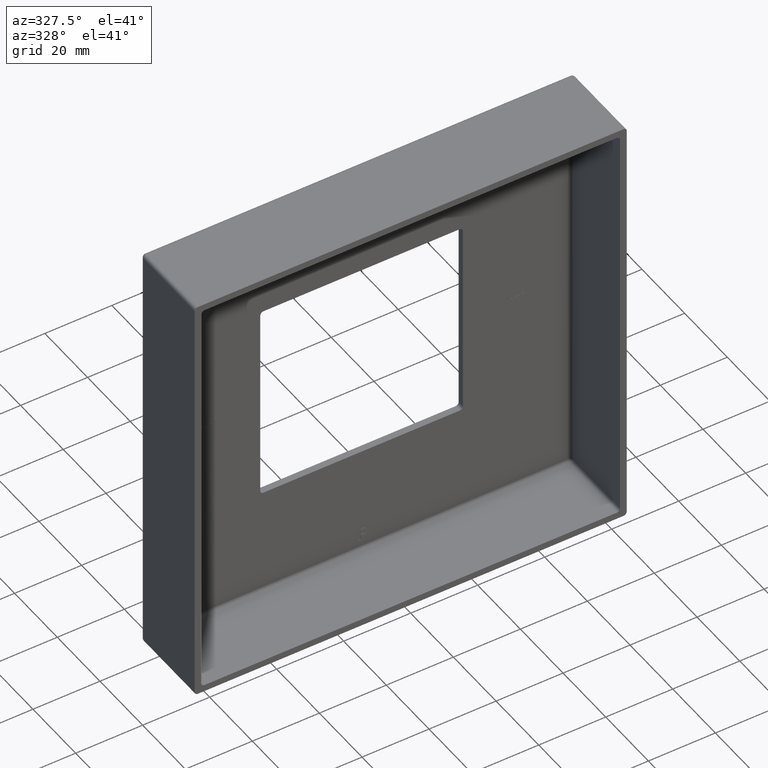
[diagram: clean part render]
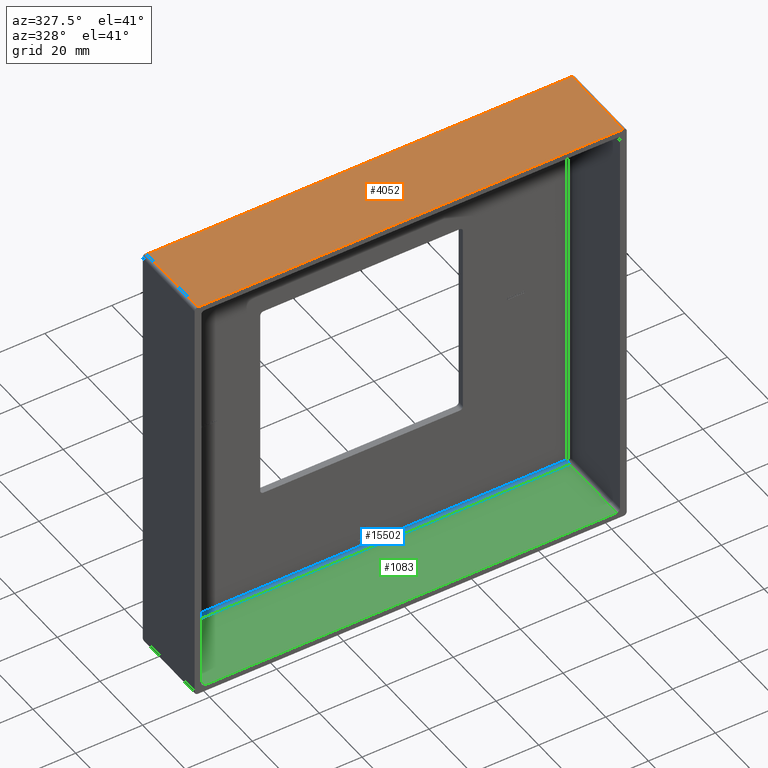
[diagram: same view with three faces highlighted in distinct colors, each labeled with its STEP entity id]
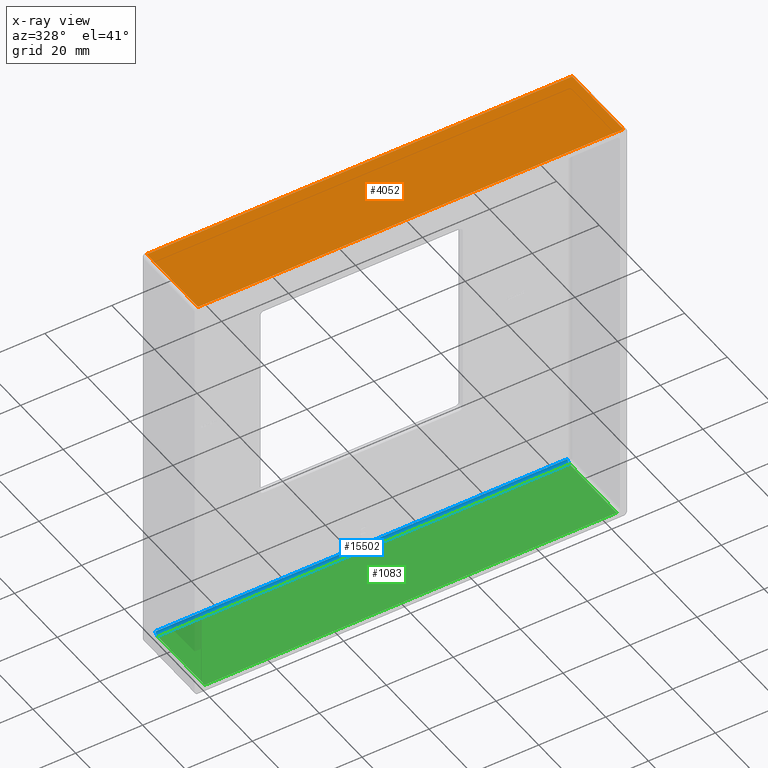
[diagram: x-ray of the same camera — body ghosted, the three highlighted faces saturated]
A machine part, auxiliary view with three faces highlighted in distinct colors.
The next image is the same camera in x-ray (body ghosted, the three faces saturated) — at least one of them is partly hidden behind the body in this view.
Their STEP definitions:

[orange] entity #4052 — the highlighted planar face has unit normal (0, 0, -1).
#1559 = ORIENTED_EDGE ( 'NONE', *, *, #5195, .T. ) ;
#2349 = EDGE_CURVE ( 'NONE', #10896, #13047, #10012, .T. ) ;
#3547 = ORIENTED_EDGE ( 'NONE', *, *, #4170, .T. ) ;
#3828 = LINE ( 'NONE', #5657, #14207 ) ;
#4052 = ADVANCED_FACE ( 'NONE', ( #5770 ), #13344, .F. ) ;
#4170 = EDGE_CURVE ( 'NONE', #15280, #10896, #3828, .T. ) ;
#4323 = CARTESIAN_POINT ( 'NONE',  ( -64.49999999999997158, 0.000000000000000000, 64.50000000000000000 ) ) ;
#4398 = CARTESIAN_POINT ( 'NONE',  ( 63.50000000000000000, 24.00000000000000000, 64.50000000000000000 ) ) ;
#4521 = ORIENTED_EDGE ( 'NONE', *, *, #12317, .T. ) ;
#5195 = EDGE_CURVE ( 'NONE', #13047, #17208, #17313, .T. ) ;
#5288 = DIRECTION ( 'NONE',  ( 0.000000000000000000, 0.000000000000000000, -1.000000000000000000 ) ) ;
#5657 = CARTESIAN_POINT ( 'NONE',  ( -63.49999999999997158, 25.00000000000000000, 64.50000000000000000 ) ) ;
#5770 = FACE_OUTER_BOUND ( 'NONE', #12388, .T. ) ;
#6868 = CARTESIAN_POINT ( 'NONE',  ( -63.49999999999997158, 24.00000000000000000, 64.50000000000000000 ) ) ;
#8327 = DIRECTION ( 'NONE',  ( 0.000000000000000000, -1.000000000000000000, 0.000000000000000000 ) ) ;
#9005 = CARTESIAN_POINT ( 'NONE',  ( -64.49999999999997158, 24.00000000000000000, 64.50000000000000000 ) ) ;
#9862 = ORIENTED_EDGE ( 'NONE', *, *, #2349, .T. ) ;
#10012 = LINE ( 'NONE', #4323, #10845 ) ;
#10156 = VECTOR ( 'NONE', #13500, 1000.000000000000000 ) ;
#10845 = VECTOR ( 'NONE', #16410, 1000.000000000000000 ) ;
#10896 = VERTEX_POINT ( 'NONE', #14932 ) ;
#11320 = AXIS2_PLACEMENT_3D ( 'NONE', #11914, #5288, #16079 ) ;
#11654 = LINE ( 'NONE', #9005, #16285 ) ;
#11914 = CARTESIAN_POINT ( 'NONE',  ( -64.49999999999997158, 25.00000000000000000, 64.50000000000000000 ) ) ;
#12317 = EDGE_CURVE ( 'NONE', #17208, #15280, #11654, .T. ) ;
#12388 = EDGE_LOOP ( 'NONE', ( #4521, #3547, #9862, #1559 ) ) ;
#13047 = VERTEX_POINT ( 'NONE', #17518 ) ;
#13344 = PLANE ( 'NONE',  #11320 ) ;
#13500 = DIRECTION ( 'NONE',  ( -0.000000000000000000, 1.000000000000000000, -0.000000000000000000 ) ) ;
#14207 = VECTOR ( 'NONE', #8327, 1000.000000000000000 ) ;
#14932 = CARTESIAN_POINT ( 'NONE',  ( -63.49999999999997158, 0.000000000000000000, 64.50000000000000000 ) ) ;
#15280 = VERTEX_POINT ( 'NONE', #6868 ) ;
#16079 = DIRECTION ( 'NONE',  ( -1.000000000000000000, 0.000000000000000000, -0.000000000000000000 ) ) ;
#16285 = VECTOR ( 'NONE', #16878, 1000.000000000000000 ) ;
#16410 = DIRECTION ( 'NONE',  ( 1.000000000000000000, 0.000000000000000000, 0.000000000000000000 ) ) ;
#16878 = DIRECTION ( 'NONE',  ( -1.000000000000000000, -0.000000000000000000, -0.000000000000000000 ) ) ;
#17208 = VERTEX_POINT ( 'NONE', #4398 ) ;
#17313 = LINE ( 'NONE', #17509, #10156 ) ;
#17509 = CARTESIAN_POINT ( 'NONE',  ( 63.50000000000000000, 25.00000000000000000, 64.50000000000000000 ) ) ;
#17518 = CARTESIAN_POINT ( 'NONE',  ( 63.50000000000000000, 0.000000000000000000, 64.50000000000000000 ) ) ;

[blue] entity #15502 — the highlighted cylindrical surface (edge-blend (fillet) strip) has radius 1 mm, axis along (-1, 0, 0).
#79 = CARTESIAN_POINT ( 'NONE',  ( -61.50000000000000000, 22.00000000000000000, -61.49999999999997158 ) ) ;
#164 = CARTESIAN_POINT ( 'NONE',  ( 61.50000000000000000, 23.00000000000000000, -61.49999999999997158 ) ) ;
#845 = LINE ( 'NONE', #1982, #11870 ) ;
#1260 = CYLINDRICAL_SURFACE ( 'NONE', #11382, 1.000000000000000888 ) ;
#1423 = CARTESIAN_POINT ( 'NONE',  ( 61.50000000000000000, 22.00000000000000000, -61.49999999999997158 ) ) ;
#1730 = AXIS2_PLACEMENT_3D ( 'NONE', #79, #5361, #9530 ) ;
#1924 = DIRECTION ( 'NONE',  ( 1.000000000000000000, -0.000000000000000000, -0.000000000000000000 ) ) ;
#1982 = CARTESIAN_POINT ( 'NONE',  ( 0.000000000000000000, 23.00000000000000000, -61.49999999999997158 ) ) ;
#2317 = VERTEX_POINT ( 'NONE', #164 ) ;
#2516 = VECTOR ( 'NONE', #16007, 1000.000000000000000 ) ;
#3649 = EDGE_CURVE ( 'NONE', #4894, #14987, #6181, .T. ) ;
#4531 = CARTESIAN_POINT ( 'NONE',  ( 61.50000000000000000, 22.00000000000000000, -62.49999999999997158 ) ) ;
#4894 = VERTEX_POINT ( 'NONE', #12261 ) ;
#5130 = CARTESIAN_POINT ( 'NONE',  ( -64.50000000000000000, 22.00000000000000000, -61.49999999999997158 ) ) ;
#5328 = EDGE_LOOP ( 'NONE', ( #6084, #10262, #7440, #15718 ) ) ;
#5361 = DIRECTION ( 'NONE',  ( -1.000000000000000000, 0.000000000000000000, -0.000000000000000000 ) ) ;
#6084 = ORIENTED_EDGE ( 'NONE', *, *, #17157, .T. ) ;
#6181 = CIRCLE ( 'NONE', #1730, 1.000000000000000888 ) ;
#6826 = VERTEX_POINT ( 'NONE', #4531 ) ;
#7064 = AXIS2_PLACEMENT_3D ( 'NONE', #1423, #8379, #11014 ) ;
#7440 = ORIENTED_EDGE ( 'NONE', *, *, #3649, .T. ) ;
#7569 = CIRCLE ( 'NONE', #7064, 1.000000000000000888 ) ;
#8379 = DIRECTION ( 'NONE',  ( 1.000000000000000000, -0.000000000000000000, -0.000000000000000000 ) ) ;
#9530 = DIRECTION ( 'NONE',  ( 0.000000000000000000, 0.000000000000000000, -1.000000000000000000 ) ) ;
#10262 = ORIENTED_EDGE ( 'NONE', *, *, #12696, .F. ) ;
#10701 = CARTESIAN_POINT ( 'NONE',  ( -64.50000000000000000, 22.00000000000000000, -62.49999999999997158 ) ) ;
#11014 = DIRECTION ( 'NONE',  ( 0.000000000000000000, 0.000000000000000000, 1.000000000000000000 ) ) ;
#11036 = CARTESIAN_POINT ( 'NONE',  ( -61.50000000000000000, 22.00000000000000000, -62.49999999999997158 ) ) ;
#11382 = AXIS2_PLACEMENT_3D ( 'NONE', #5130, #13469, #13233 ) ;
#11870 = VECTOR ( 'NONE', #1924, 1000.000000000000000 ) ;
#12261 = CARTESIAN_POINT ( 'NONE',  ( -61.50000000000000000, 23.00000000000000000, -61.49999999999997158 ) ) ;
#12696 = EDGE_CURVE ( 'NONE', #4894, #2317, #845, .T. ) ;
#13233 = DIRECTION ( 'NONE',  ( 0.000000000000000000, 0.000000000000000000, 1.000000000000000000 ) ) ;
#13469 = DIRECTION ( 'NONE',  ( -1.000000000000000000, 0.000000000000000000, 0.000000000000000000 ) ) ;
#14987 = VERTEX_POINT ( 'NONE', #11036 ) ;
#15502 = ADVANCED_FACE ( 'NONE', ( #15815 ), #1260, .F. ) ;
#15718 = ORIENTED_EDGE ( 'NONE', *, *, #16368, .F. ) ;
#15815 = FACE_OUTER_BOUND ( 'NONE', #5328, .T. ) ;
#16007 = DIRECTION ( 'NONE',  ( -1.000000000000000000, 0.000000000000000000, 0.000000000000000000 ) ) ;
#16043 = LINE ( 'NONE', #10701, #2516 ) ;
#16368 = EDGE_CURVE ( 'NONE', #6826, #14987, #16043, .T. ) ;
#17157 = EDGE_CURVE ( 'NONE', #6826, #2317, #7569, .T. ) ;

[green] entity #1083 — the highlighted planar face has unit normal (0, 0, 1).
#547 = EDGE_LOOP ( 'NONE', ( #1226, #8459, #7123, #10812 ) ) ;
#1083 = ADVANCED_FACE ( 'NONE', ( #17173 ), #12266, .T. ) ;
#1226 = ORIENTED_EDGE ( 'NONE', *, *, #16368, .T. ) ;
#1921 = EDGE_CURVE ( 'NONE', #8905, #14925, #7055, .T. ) ;
#1980 = VECTOR ( 'NONE', #9566, 1000.000000000000000 ) ;
#2516 = VECTOR ( 'NONE', #16007, 1000.000000000000000 ) ;
#4207 = DIRECTION ( 'NONE',  ( 1.000000000000000000, 0.000000000000000000, -0.000000000000000000 ) ) ;
#4531 = CARTESIAN_POINT ( 'NONE',  ( 61.50000000000000000, 22.00000000000000000, -62.49999999999997158 ) ) ;
#4849 = DIRECTION ( 'NONE',  ( -1.000000000000000000, 0.000000000000000000, 0.000000000000000000 ) ) ;
#5877 = CARTESIAN_POINT ( 'NONE',  ( -64.50000000000000000, 0.000000000000000000, -62.49999999999997158 ) ) ;
#6175 = CARTESIAN_POINT ( 'NONE',  ( 61.50000000000000000, 0.000000000000000000, -62.49999999999997158 ) ) ;
#6826 = VERTEX_POINT ( 'NONE', #4531 ) ;
#7055 = LINE ( 'NONE', #5877, #13837 ) ;
#7123 = ORIENTED_EDGE ( 'NONE', *, *, #1921, .F. ) ;
#7764 = CARTESIAN_POINT ( 'NONE',  ( -61.50000000000000000, 0.000000000000000000, -62.49999999999997158 ) ) ;
#8459 = ORIENTED_EDGE ( 'NONE', *, *, #14699, .T. ) ;
#8905 = VERTEX_POINT ( 'NONE', #6175 ) ;
#9148 = EDGE_CURVE ( 'NONE', #8905, #6826, #15700, .T. ) ;
#9566 = DIRECTION ( 'NONE',  ( 0.000000000000000000, 1.000000000000000000, -0.000000000000000000 ) ) ;
#10701 = CARTESIAN_POINT ( 'NONE',  ( -64.50000000000000000, 22.00000000000000000, -62.49999999999997158 ) ) ;
#10812 = ORIENTED_EDGE ( 'NONE', *, *, #9148, .T. ) ;
#11036 = CARTESIAN_POINT ( 'NONE',  ( -61.50000000000000000, 22.00000000000000000, -62.49999999999997158 ) ) ;
#11206 = VECTOR ( 'NONE', #16984, 1000.000000000000000 ) ;
#12147 = DIRECTION ( 'NONE',  ( 0.000000000000000000, 0.000000000000000000, 1.000000000000000000 ) ) ;
#12266 = PLANE ( 'NONE',  #16527 ) ;
#13451 = CARTESIAN_POINT ( 'NONE',  ( -64.50000000000000000, 25.00000000000000000, -62.49999999999997158 ) ) ;
#13837 = VECTOR ( 'NONE', #4849, 1000.000000000000000 ) ;
#14699 = EDGE_CURVE ( 'NONE', #14987, #14925, #14785, .T. ) ;
#14785 = LINE ( 'NONE', #15572, #11206 ) ;
#14925 = VERTEX_POINT ( 'NONE', #7764 ) ;
#14987 = VERTEX_POINT ( 'NONE', #11036 ) ;
#15572 = CARTESIAN_POINT ( 'NONE',  ( -61.50000000000000000, 0.000000000000000000, -62.49999999999997158 ) ) ;
#15700 = LINE ( 'NONE', #16186, #1980 ) ;
#16007 = DIRECTION ( 'NONE',  ( -1.000000000000000000, 0.000000000000000000, 0.000000000000000000 ) ) ;
#16043 = LINE ( 'NONE', #10701, #2516 ) ;
#16186 = CARTESIAN_POINT ( 'NONE',  ( 61.50000000000000000, 23.00000000000000000, -62.49999999999997158 ) ) ;
#16368 = EDGE_CURVE ( 'NONE', #6826, #14987, #16043, .T. ) ;
#16527 = AXIS2_PLACEMENT_3D ( 'NONE', #13451, #12147, #4207 ) ;
#16984 = DIRECTION ( 'NONE',  ( 0.000000000000000000, -1.000000000000000000, 0.000000000000000000 ) ) ;
#17173 = FACE_OUTER_BOUND ( 'NONE', #547, .T. ) ;